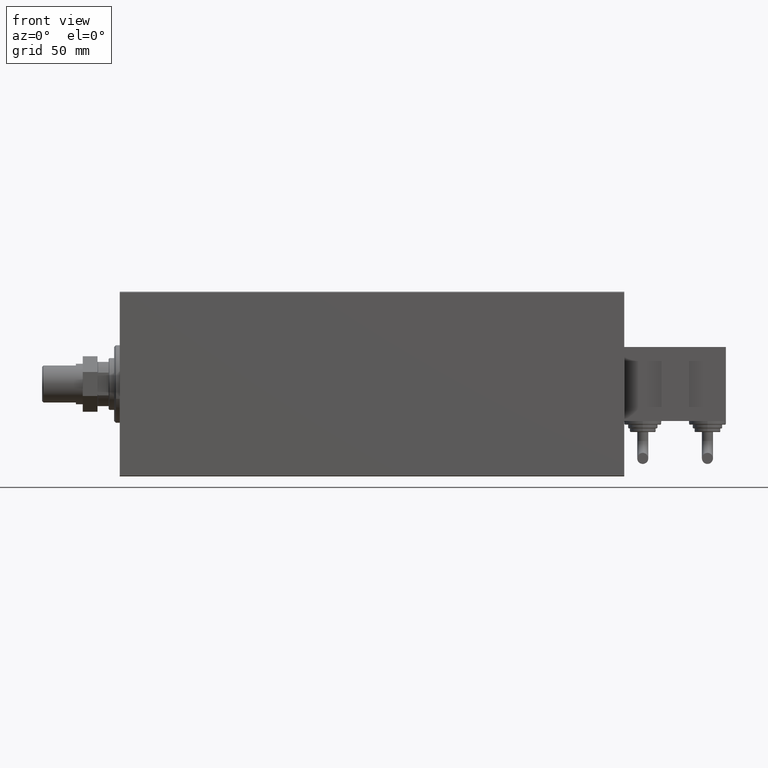
[diagram: clean part render]
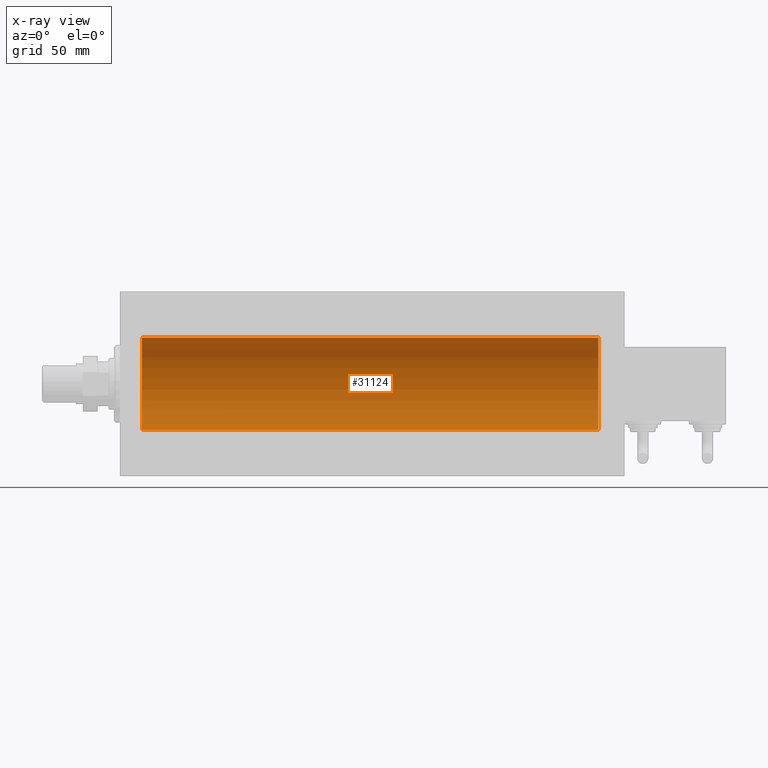
[diagram: x-ray — body ghosted, one internal face saturated and labeled with its STEP entity id]
A machine part, front view, then the same camera in x-ray: the body is ghosted and one INTERNAL B-rep face — a face not visible from any outside direction — is saturated and labeled: STEP entity #31124.
In plain terms, the highlighted cylindrical surface (partial cylindrical patch) has radius 25 mm, axis along (-1, -0, -0).
Its self-contained STEP definition (entity closure, byte-faithful):
#1130 = ORIENTED_EDGE ( 'NONE', *, *, #2601, .T. ) ;
#1197 = ORIENTED_EDGE ( 'NONE', *, *, #3874, .F. ) ;
#2601 = EDGE_CURVE ( 'NONE', #41981, #47991, #3450, .T. ) ;
#3450 = LINE ( 'NONE', #11505, #39783 ) ;
#3874 = EDGE_CURVE ( 'NONE', #23693, #31535, #36838, .T. ) ;
#4515 = CARTESIAN_POINT ( 'NONE',  ( 259.0000000000000000, 0.000000000000000000, 25.00000000000000000 ) ) ;
#10855 = EDGE_CURVE ( 'NONE', #41981, #23693, #35130, .T. ) ;
#11505 = CARTESIAN_POINT ( 'NONE',  ( 259.0000000000000000, 0.000000000000000000, 25.00000000000000000 ) ) ;
#12242 = DIRECTION ( 'NONE',  ( -1.000000000000000000, 0.000000000000000000, 0.000000000000000000 ) ) ;
#12480 = EDGE_LOOP ( 'NONE', ( #1197, #41527, #1130, #31982 ) ) ;
#15943 = AXIS2_PLACEMENT_3D ( 'NONE', #34231, #30457, #45832 ) ;
#15986 = DIRECTION ( 'NONE',  ( 0.000000000000000000, 0.000000000000000000, 1.000000000000000000 ) ) ;
#16455 = EDGE_CURVE ( 'NONE', #47991, #31535, #36926, .T. ) ;
#18806 = DIRECTION ( 'NONE',  ( -1.000000000000000000, -0.000000000000000000, -0.000000000000000000 ) ) ;
#19360 = CYLINDRICAL_SURFACE ( 'NONE', #15943, 25.00000000000000000 ) ;
#23693 = VERTEX_POINT ( 'NONE', #42794 ) ;
#28872 = AXIS2_PLACEMENT_3D ( 'NONE', #48752, #49256, #15986 ) ;
#30457 = DIRECTION ( 'NONE',  ( -1.000000000000000000, -0.000000000000000000, -0.000000000000000000 ) ) ;
#31124 = ADVANCED_FACE ( 'NONE', ( #42291 ), #19360, .F. ) ;
#31535 = VERTEX_POINT ( 'NONE', #43734 ) ;
#31982 = ORIENTED_EDGE ( 'NONE', *, *, #16455, .T. ) ;
#34050 = DIRECTION ( 'NONE',  ( -1.000000000000000000, -0.000000000000000000, -0.000000000000000000 ) ) ;
#34231 = CARTESIAN_POINT ( 'NONE',  ( 259.0000000000000000, 0.000000000000000000, 0.000000000000000000 ) ) ;
#35130 = CIRCLE ( 'NONE', #37530, 25.00000000000000000 ) ;
#36838 = LINE ( 'NONE', #41114, #47880 ) ;
#36926 = CIRCLE ( 'NONE', #28872, 25.00000000000000000 ) ;
#37530 = AXIS2_PLACEMENT_3D ( 'NONE', #42723, #12242, #46248 ) ;
#39783 = VECTOR ( 'NONE', #18806, 1000.000000000000000 ) ;
#41114 = CARTESIAN_POINT ( 'NONE',  ( 259.0000000000000000, 3.061616997868383043E-15, -25.00000000000000000 ) ) ;
#41527 = ORIENTED_EDGE ( 'NONE', *, *, #10855, .F. ) ;
#41981 = VERTEX_POINT ( 'NONE', #4515 ) ;
#42291 = FACE_OUTER_BOUND ( 'NONE', #12480, .T. ) ;
#42723 = CARTESIAN_POINT ( 'NONE',  ( 259.0000000000000000, 0.000000000000000000, 0.000000000000000000 ) ) ;
#42794 = CARTESIAN_POINT ( 'NONE',  ( 259.0000000000000000, 3.061616997868383043E-15, -25.00000000000000000 ) ) ;
#43734 = CARTESIAN_POINT ( 'NONE',  ( 12.00000000000001066, 3.061616997868383043E-15, -25.00000000000000000 ) ) ;
#45832 = DIRECTION ( 'NONE',  ( 0.000000000000000000, 0.000000000000000000, 1.000000000000000000 ) ) ;
#46248 = DIRECTION ( 'NONE',  ( 0.000000000000000000, 0.000000000000000000, 1.000000000000000000 ) ) ;
#47880 = VECTOR ( 'NONE', #34050, 1000.000000000000000 ) ;
#47991 = VERTEX_POINT ( 'NONE', #49159 ) ;
#48752 = CARTESIAN_POINT ( 'NONE',  ( 12.00000000000001066, 0.000000000000000000, 0.000000000000000000 ) ) ;
#49159 = CARTESIAN_POINT ( 'NONE',  ( 12.00000000000001066, 0.000000000000000000, 25.00000000000000000 ) ) ;
#49256 = DIRECTION ( 'NONE',  ( -1.000000000000000000, 0.000000000000000000, 0.000000000000000000 ) ) ;